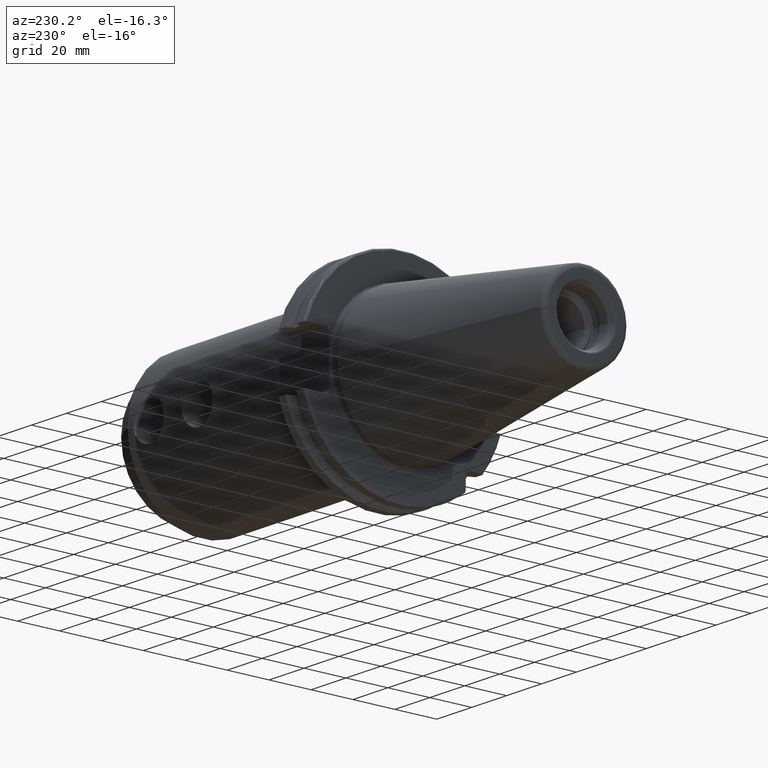
[diagram: clean part render]
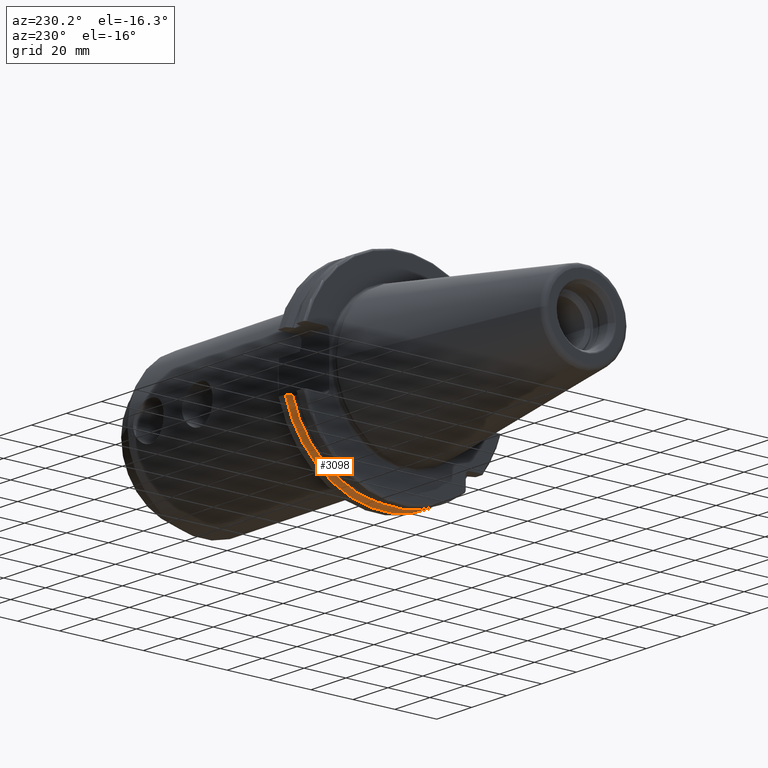
[diagram: same view with one face highlighted and labeled with its STEP entity id]
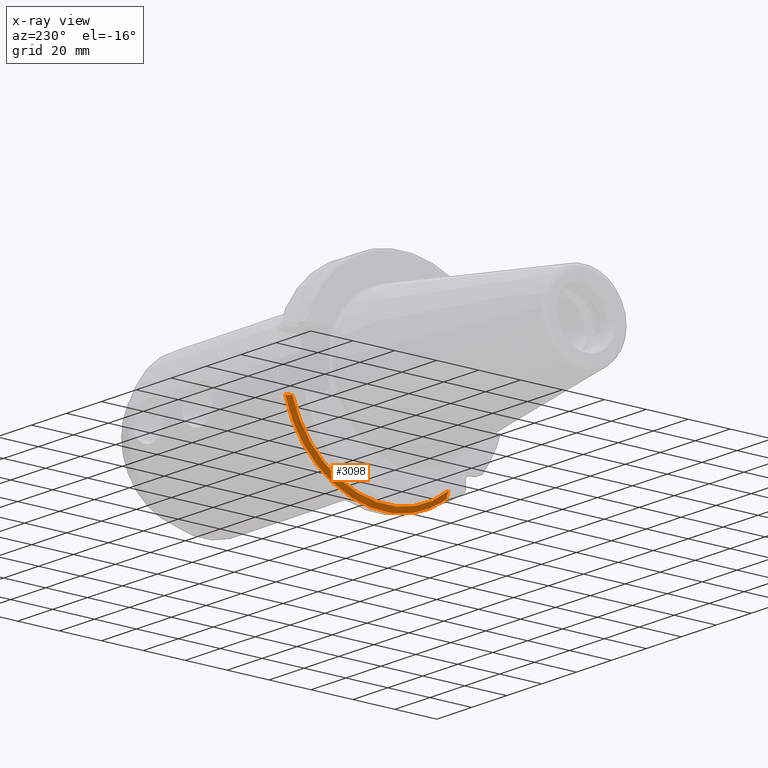
[diagram: x-ray of the same camera — body ghosted, the highlighted face saturated]
A machine part, auxiliary view. The second image highlights one B-rep face of the part: STEP entity #3098.
The next image is the same camera in x-ray: the body ghosted, the highlighted face saturated — about 0% of this face is hidden behind the body in this view.
In plain terms, the highlighted conical surface has half-angle 60 deg.
Its self-contained STEP definition (entity closure, byte-faithful):
#765=CARTESIAN_POINT('',(1.441537838583E1,0.E0,0.E0));
#766=DIRECTION('',(1.E0,0.E0,0.E0));
#767=DIRECTION('',(0.E0,-6.124647345473E-1,-7.904979120376E-1));
#768=AXIS2_PLACEMENT_3D('',#765,#766,#767);
#1320=CARTESIAN_POINT('',(1.30875E1,4.460981716077E1,-1.29E1));
#1321=CARTESIAN_POINT('',(1.323171622645E1,4.486984125009E1,-1.29E1));
#1322=CARTESIAN_POINT('',(1.352236645045E1,4.539353719098E1,-1.29E1));
#1323=CARTESIAN_POINT('',(1.396495664446E1,4.618996220278E1,-1.29E1));
#1324=CARTESIAN_POINT('',(1.426449561388E1,4.672829507383E1,-1.29E1));
#1325=CARTESIAN_POINT('',(1.441537838583E1,4.699929686974E1,-1.29E1));
#1327=CARTESIAN_POINT('',(1.30875E1,0.E0,0.E0));
#1328=DIRECTION('',(-1.E0,0.E0,0.E0));
#1329=DIRECTION('',(0.E0,9.606411165078E-1,-2.777924499957E-1));
#1330=AXIS2_PLACEMENT_3D('',#1327,#1328,#1329);
#1332=CARTESIAN_POINT('',(1.30875E1,-2.985E1,-3.557278857662E1));
#1333=CARTESIAN_POINT('',(1.322720354061E1,-2.985E1,-3.588866659244E1));
#1334=CARTESIAN_POINT('',(1.351179500938E1,-2.985E1,-3.652866450573E1));
#1335=CARTESIAN_POINT('',(1.395393296765E1,-2.985E1,-3.751242476101E1));
#1336=CARTESIAN_POINT('',(1.425975326859E1,-2.985E1,-3.818590359837E1));
#1337=CARTESIAN_POINT('',(1.441537838583E1,-2.985E1,-3.852689198793E1));
#1678=CARTESIAN_POINT('',(1.30875E1,4.460981716077E1,-1.29E1));
#1680=VERTEX_POINT('',#1678);
#1698=VERTEX_POINT('',#1325);
#1739=CARTESIAN_POINT('',(1.30875E1,-2.985E1,-3.557278857662E1));
#1740=VERTEX_POINT('',#1739);
#1846=VERTEX_POINT('',#1337);
#3087=CARTESIAN_POINT('',(1.375143919291E1,0.E0,0.E0));
#3088=DIRECTION('',(1.E0,0.E0,0.E0));
#3089=DIRECTION('',(0.E0,-1.E0,0.E0));
#3090=AXIS2_PLACEMENT_3D('',#3087,#3088,#3089);
#3091=CONICAL_SURFACE('',#3090,4.758752358474E1,6.E1);
#3092=ORIENTED_EDGE('',*,*,#2402,.F.);
#3093=ORIENTED_EDGE('',*,*,#2954,.T.);
#3094=ORIENTED_EDGE('',*,*,#2681,.T.);
#3095=ORIENTED_EDGE('',*,*,#2608,.T.);
#3096=EDGE_LOOP('',(#3092,#3093,#3094,#3095));
#3097=FACE_OUTER_BOUND('',#3096,.F.);
#3098=ADVANCED_FACE('',(#3097),#3091,.T.);
#769=CIRCLE('',#768,4.87375E1);
#1326=B_SPLINE_CURVE_WITH_KNOTS('',3,(#1320,#1321,#1322,#1323,#1324,#1325),
.UNSPECIFIED.,.F.,.F.,(4,1,1,4),(0.E0,3.333333333333E-1,6.666666666667E-1,1.E0),
.UNSPECIFIED.);
#1331=CIRCLE('',#1330,4.643754716948E1);
#1338=B_SPLINE_CURVE_WITH_KNOTS('',3,(#1332,#1333,#1334,#1335,#1336,#1337),
.UNSPECIFIED.,.F.,.F.,(4,1,1,4),(0.E0,3.333333333333E-1,6.666666666667E-1,1.E0),
.UNSPECIFIED.);
#2402=EDGE_CURVE('',#1680,#1698,#1326,.T.);
#2608=EDGE_CURVE('',#1846,#1698,#769,.T.);
#2681=EDGE_CURVE('',#1740,#1846,#1338,.T.);
#2954=EDGE_CURVE('',#1680,#1740,#1331,.T.);